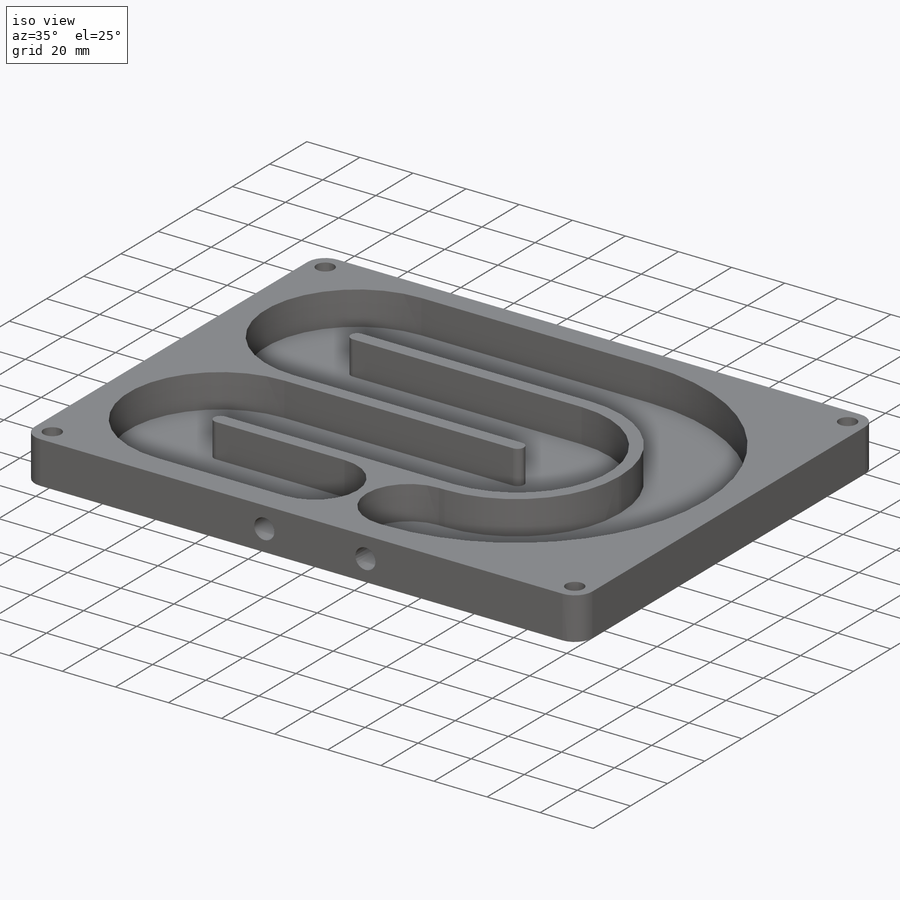
[diagram: iso view]
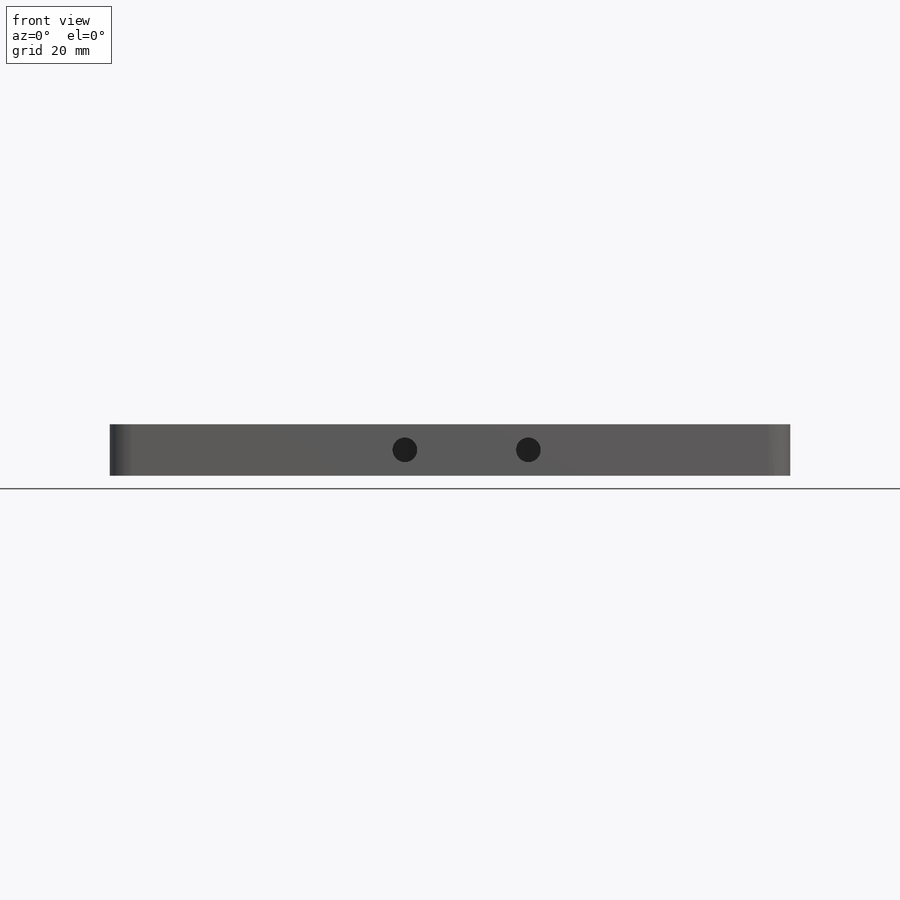
[diagram: front view]
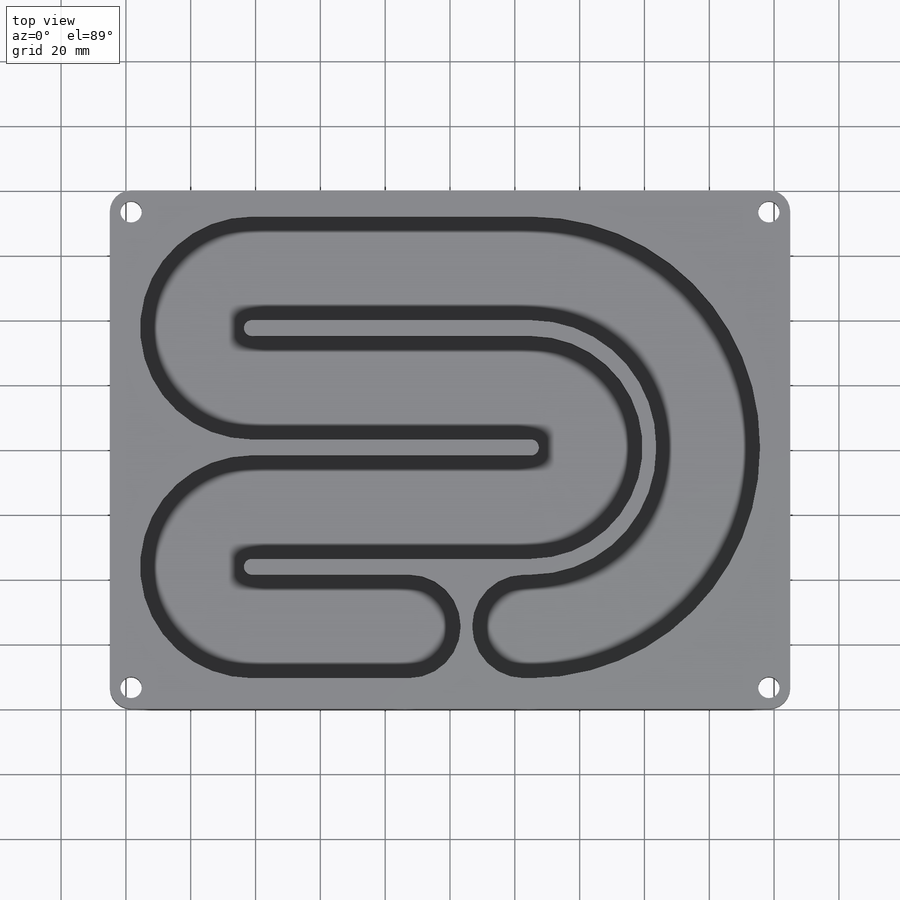
[diagram: top view]
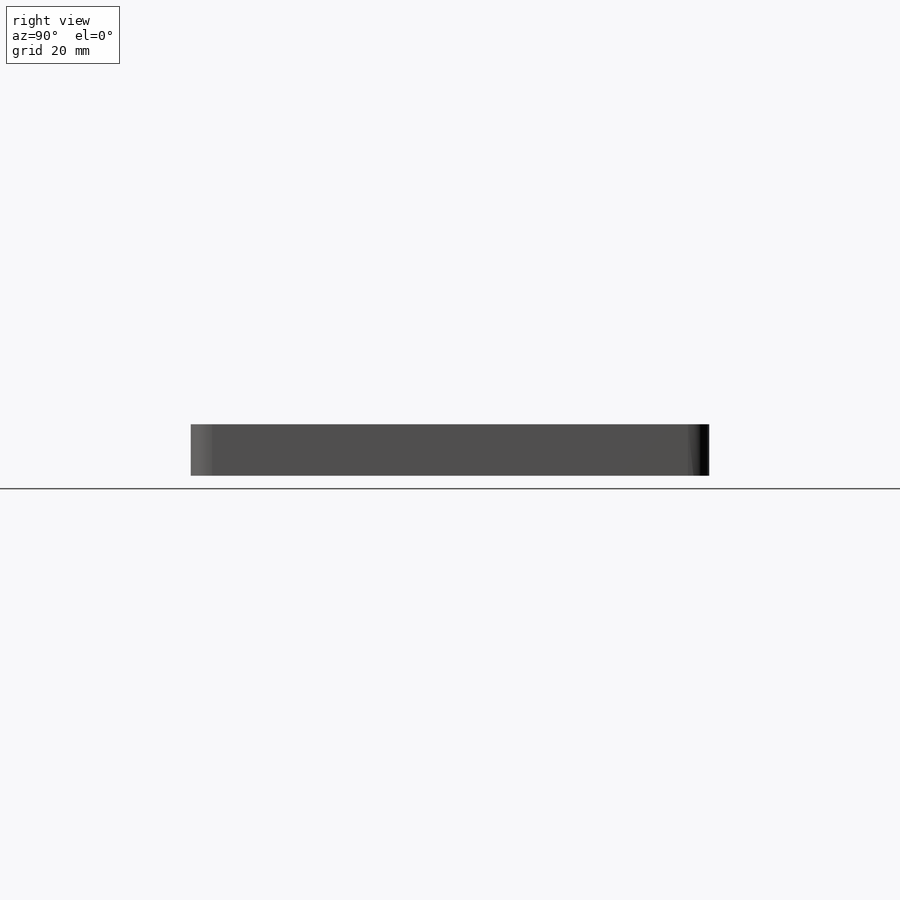
[diagram: right view]
SOLIDWORKS PART (.sldprt)
format: sldprt  version: not decoded by parser v0  size: 307,200 bytes
history: native  units: mm
features: sketch x4, cut_extrude x2, material x1, extrude x1 (+16 scaffold rows collapsed)
feature tree (24):
  scaffold x16  (default folders/planes/origin — collapsed)
  material  "Material <not specified>"
  sketch  "Sketch1"  dims[c1.D1=6.604mm c1.D2=6.604mm c1.D4=6.604mm c1.D8=6.604mm c1.D12=6.604mm c1.D14=7.366mm c1.D17=7.366mm c1.D21=7.366mm c1.D23=7.366mm c1.D28=9.652mm c1.D3=6.604mm c1.D5=6.604mm c1.D6=6.604mm c1.D7=9.652mm c1.D9=6.604mm c1.D10=6.604mm c1.D11=6.604mm c1.D13=6.604mm c1.D15=5.207mm c1.D16=23.749mm c1.D18=5.207mm c1.D19=23.749mm c1.D20=5.207mm c1.D22=23.749mm c1.D24=5.207mm c1.D25=23.749mm c1.D26=210.0mm c1.D27=160.0mm c2.D28=255.778mm c2.D7=6.604mm c3.D28=14.097mm]
  extrude  "Boss-Extrude1"  Depth=15.875mm
  sketch  "Sketch2"  dims[c1.D7=54.61mm c1.D8=54.61mm c1.D9=19.0mm c1.D1=25.4mm c1.D2=25.4mm c1.D3=25.4mm c1.D4=22.86mm c1.D5=36.83mm c1.D6=36.83mm c2.D7=38.0mm c2.D9=82.169mm c2.D10=35.56mm c2.D11=80.01mm c2.D4=36.83mm]
  sketch  "Sketch3"  dims[D1=16.002mm D2=16.002mm]
  cut_extrude  "Cut-Extrude1"  Depth=12.7mm
  sketch  "Sketch4"  dims[D4=7.62mm D5=7.62mm D6=7.62mm D1=19.05mm D2=19.05mm D3=38.1mm D7=110.109mm]
  cut_extrude  "Cut-Extrude2"  Depth=13.97mm
decode coverage: 7 of 7 modeling features carry decoded parameters
note: suppression state not decoded; provenance and decode notes live in map.json
